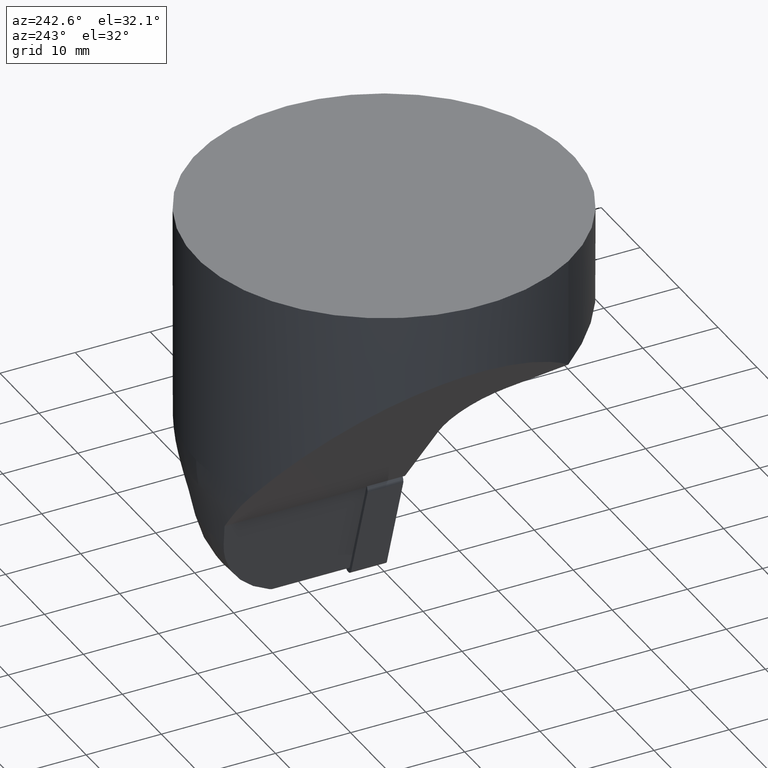
[diagram: clean part render]
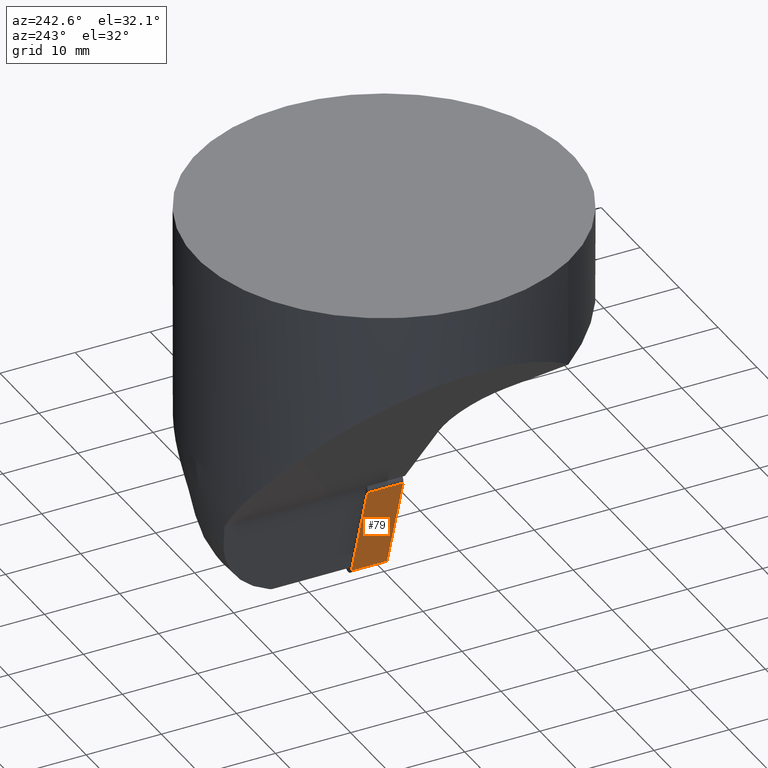
[diagram: same view with one face highlighted and labeled with its STEP entity id]
A machine part, auxiliary view. The second image highlights one B-rep face of the part: STEP entity #79.
In plain terms, the highlighted planar face has unit normal (-0.9537, 0, -0.3007).
Its self-contained STEP definition (entity closure, byte-faithful):
#79=ADVANCED_FACE('',(#112),#113,.T.);
#112=FACE_OUTER_BOUND('',#193,.T.);
#113=PLANE('',#194);
#193=EDGE_LOOP('',(#315,#316,#317,#318));
#194=AXIS2_PLACEMENT_3D('',#319,#320,#321);
#315=ORIENTED_EDGE('',*,*,#526,.T.);
#316=ORIENTED_EDGE('',*,*,#527,.F.);
#317=ORIENTED_EDGE('',*,*,#528,.T.);
#318=ORIENTED_EDGE('',*,*,#524,.T.);
#319=CARTESIAN_POINT('',(-0.760068665811087,4.76000000000001,-49.1051043592734));
#320=DIRECTION('',(-0.953716950748227,0.0,-0.300705799504273));
#321=DIRECTION('',(-0.300705799504273,0.0,0.953716950748227));
#524=EDGE_CURVE('',#607,#605,#608,.T.);
#526=EDGE_CURVE('',#605,#610,#611,.T.);
#527=EDGE_CURVE('',#612,#610,#613,.T.);
#528=EDGE_CURVE('',#612,#607,#614,.T.);
#605=VERTEX_POINT('',#736);
#607=VERTEX_POINT('',#738);
#608=LINE('',#739,#740);
#610=VERTEX_POINT('',#742);
#611=LINE('',#743,#744);
#612=VERTEX_POINT('',#745);
#613=LINE('',#746,#747);
#614=LINE('',#748,#749);
#736=CARTESIAN_POINT('',(-0.760068665811087,7.21644966006352E-015,-49.1051043592734));
#738=CARTESIAN_POINT('',(-0.760068665811087,4.76000000000001,-49.1051043592734));
#739=CARTESIAN_POINT('',(-0.760068665811087,4.76000000000001,-49.1051043592734));
#740=VECTOR('',#1007,10.0);
#742=CARTESIAN_POINT('',(-4.91805730008616,7.21644966006352E-015,-35.9176492185212));
#743=CARTESIAN_POINT('',(-4.91805730008617,6.10622663543836E-015,-35.9176492185212));
#744=VECTOR('',#1011,10.0);
#745=CARTESIAN_POINT('',(-4.91805730008616,4.76000000000001,-35.9176492185212));
#746=CARTESIAN_POINT('',(-4.91805730008616,4.76000000000001,-35.9176492185212));
#747=VECTOR('',#1012,10.0);
#748=CARTESIAN_POINT('',(-4.91805730008617,4.76000000000001,-35.9176492185212));
#749=VECTOR('',#1013,10.0);
#1007=DIRECTION('',(0.0,-1.0,0.0));
#1011=DIRECTION('',(-0.300705799504273,6.01818725836362E-032,0.953716950748227));
#1012=DIRECTION('',(0.0,-1.0,0.0));
#1013=DIRECTION('',(0.300705799504273,-6.01818725836362E-032,-0.953716950748227));